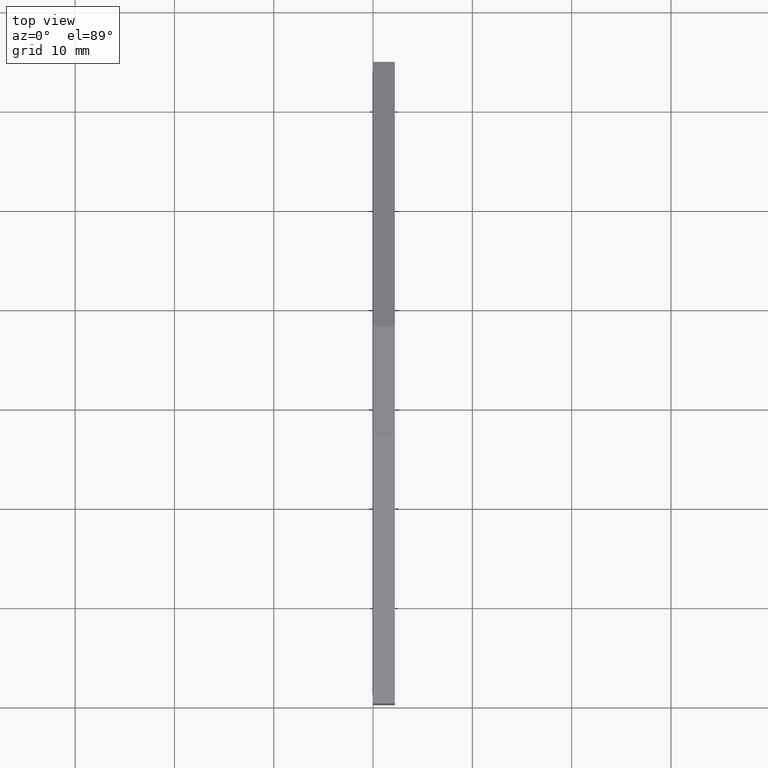
[diagram: clean part render]
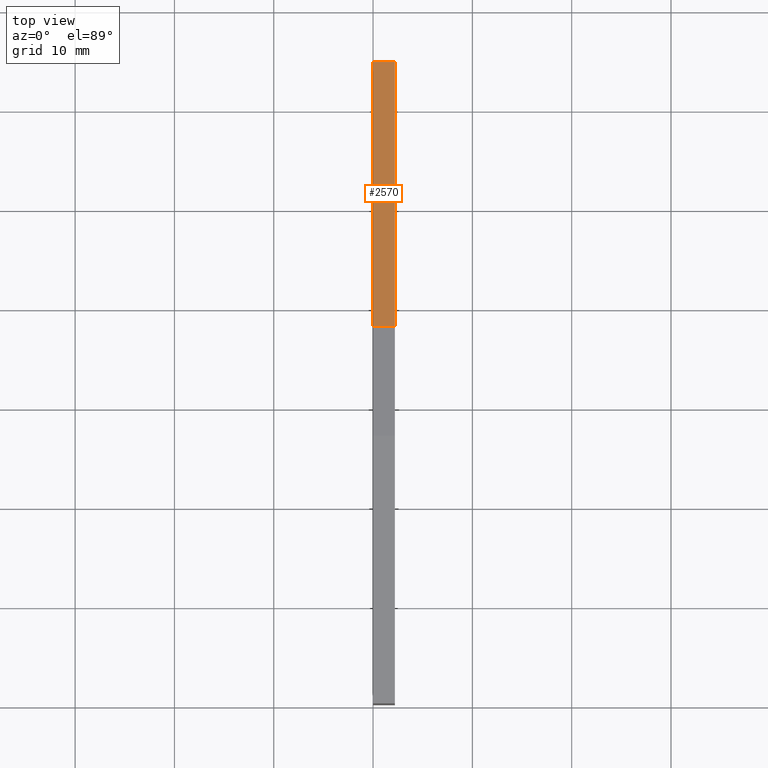
[diagram: same view with one face highlighted and labeled with its STEP entity id]
A machine part, top view. The second image highlights one B-rep face of the part: STEP entity #2570.
In plain terms, the highlighted planar face has unit normal (-0, 0.342, 0.9397).
Its self-contained STEP definition (entity closure, byte-faithful):
#200=CARTESIAN_POINT('',(71.7491941982856,-2.90000000000795,45.32));
#210=VERTEX_POINT('',#200);
#240=CARTESIAN_POINT('',(0.,23.2145710207724,45.3199999999998));
#250=DIRECTION('',(0.939692620785828,-0.342020143325889,
2.41473507855972E-15));
#260=VECTOR('',#250,1.);
#270=LINE('',#240,#260);
#280=CARTESIAN_POINT('',(98.5321672216761,-12.6482049656839,
45.3200000000001));
#290=VERTEX_POINT('',#280);
#300=EDGE_CURVE('',#210,#290,#270,.T.);
#1230=CARTESIAN_POINT('',(98.5321672216761,-12.6482049656839,
43.1200000000001));
#1240=VERTEX_POINT('',#1230);
#1270=CARTESIAN_POINT('',(0.,23.2145710207723,43.1199999999998));
#1280=DIRECTION('',(0.939692620785828,-0.342020143325889,
2.41473507855972E-15));
#1290=VECTOR('',#1280,1.);
#1300=LINE('',#1270,#1290);
#1310=CARTESIAN_POINT('',(71.7491941982856,-2.90000000000797,43.12));
#1320=VERTEX_POINT('',#1310);
#1330=EDGE_CURVE('',#1320,#1240,#1300,.T.);
#2000=CARTESIAN_POINT('',(71.7491941982856,-2.90000000000827,0.));
#2010=DIRECTION('',(-1.9835684877888E-28,7.105427357601E-15,1.));
#2020=VECTOR('',#2010,1.);
#2030=LINE('',#2000,#2020);
#2040=EDGE_CURVE('',#1320,#210,#2030,.T.);
#2410=CARTESIAN_POINT('',(98.4005712503412,-12.6003079491686,
45.3200000000001));
#2420=DIRECTION('',(0.342020143325889,0.939692620785828,
-6.67691765546734E-15));
#2430=DIRECTION('',(-0.939692620785828,0.342020143325889,
-2.43019928323857E-15));
#2440=AXIS2_PLACEMENT_3D('',#2410,#2420,#2430);
#2450=PLANE('',#2440);
#2460=ORIENTED_EDGE('',*,*,#2040,.T.);
#2470=ORIENTED_EDGE('',*,*,#1330,.F.);
#2480=CARTESIAN_POINT('',(98.5321672216761,-12.6482049656842,0.));
#2490=DIRECTION('',(-1.99378457216465E-28,7.105427357601E-15,1.));
#2500=VECTOR('',#2490,1.);
#2510=LINE('',#2480,#2500);
#2520=EDGE_CURVE('',#1240,#290,#2510,.T.);
#2530=ORIENTED_EDGE('',*,*,#2520,.F.);
#2540=ORIENTED_EDGE('',*,*,#300,.T.);
#2550=EDGE_LOOP('',(#2540,#2530,#2470,#2460));
#2560=FACE_OUTER_BOUND('',#2550,.T.);
#2570=ADVANCED_FACE('',(#2560),#2450,.T.);